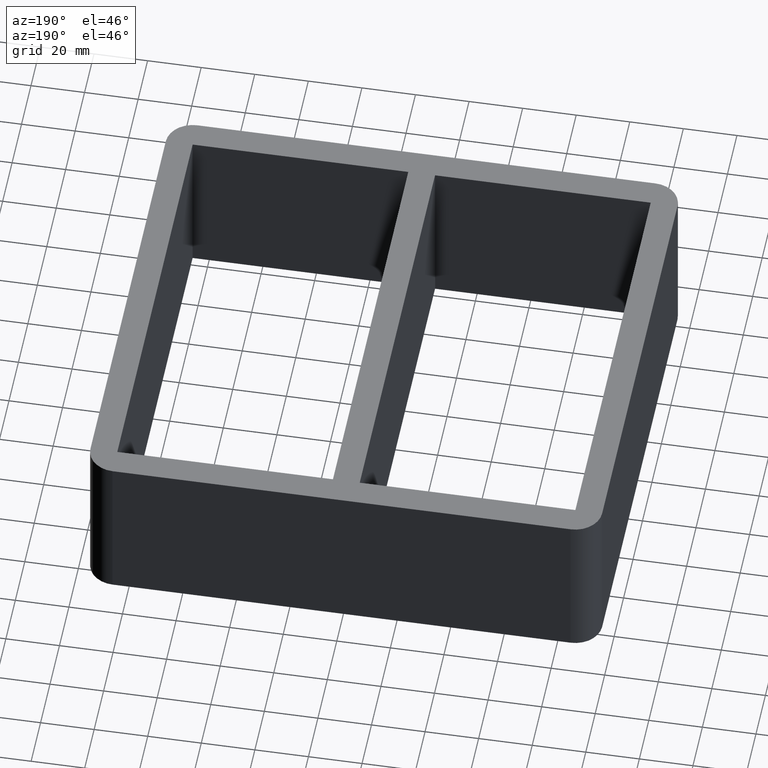
[diagram: clean part render]
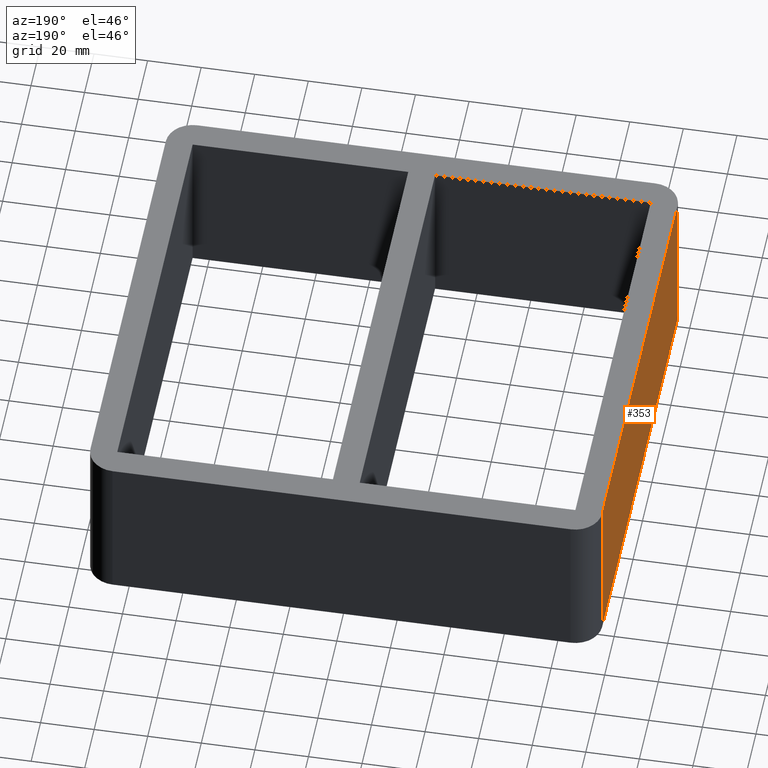
[diagram: same view with one face highlighted and labeled with its STEP entity id]
A machine part, auxiliary view. The second image highlights one B-rep face of the part: STEP entity #353.
In plain terms, the highlighted planar face has unit normal (-1, 0, 0).
Its self-contained STEP definition (entity closure, byte-faithful):
#43=FACE_OUTER_BOUND('',#63,.T.);
#63=EDGE_LOOP('',(#291,#292,#293,#294));
#102=LINE('',#573,#142);
#103=LINE('',#577,#143);
#104=LINE('',#581,#144);
#105=LINE('',#582,#145);
#142=VECTOR('',#468,10.);
#143=VECTOR('',#473,10.);
#144=VECTOR('',#478,10.);
#145=VECTOR('',#479,10.);
#176=VERTEX_POINT('',#570);
#177=VERTEX_POINT('',#572);
#178=VERTEX_POINT('',#576);
#179=VERTEX_POINT('',#580);
#218=EDGE_CURVE('',#176,#177,#102,.T.);
#220=EDGE_CURVE('',#177,#178,#103,.T.);
#222=EDGE_CURVE('',#179,#176,#104,.T.);
#223=EDGE_CURVE('',#178,#179,#105,.T.);
#291=ORIENTED_EDGE('',*,*,#220,.F.);
#292=ORIENTED_EDGE('',*,*,#218,.F.);
#293=ORIENTED_EDGE('',*,*,#222,.F.);
#294=ORIENTED_EDGE('',*,*,#223,.F.);
#337=PLANE('',#397);
#353=ADVANCED_FACE('',(#43),#337,.T.);
#397=AXIS2_PLACEMENT_3D('',#579,#476,#477);
#468=DIRECTION('',(0.,1.,0.));
#473=DIRECTION('',(0.,0.,1.));
#476=DIRECTION('center_axis',(-1.,0.,0.));
#477=DIRECTION('ref_axis',(0.,1.,0.));
#478=DIRECTION('',(0.,0.,-1.));
#479=DIRECTION('',(0.,-1.,0.));
#570=CARTESIAN_POINT('',(-95.4999999999998,-79.7500000000001,-60.));
#572=CARTESIAN_POINT('',(-95.4999999999998,79.7499999999999,-60.));
#573=CARTESIAN_POINT('',(-95.4999999999998,89.7499999999999,-60.));
#576=CARTESIAN_POINT('',(-95.4999999999998,79.7499999999999,0.));
#577=CARTESIAN_POINT('',(-95.4999999999998,79.7499999999999,0.));
#579=CARTESIAN_POINT('Origin',(-95.4999999999998,-89.7500000000001,0.));
#580=CARTESIAN_POINT('',(-95.4999999999998,-79.7500000000001,0.));
#581=CARTESIAN_POINT('',(-95.4999999999998,-79.7500000000001,0.));
#582=CARTESIAN_POINT('',(-95.4999999999998,89.7499999999999,0.));